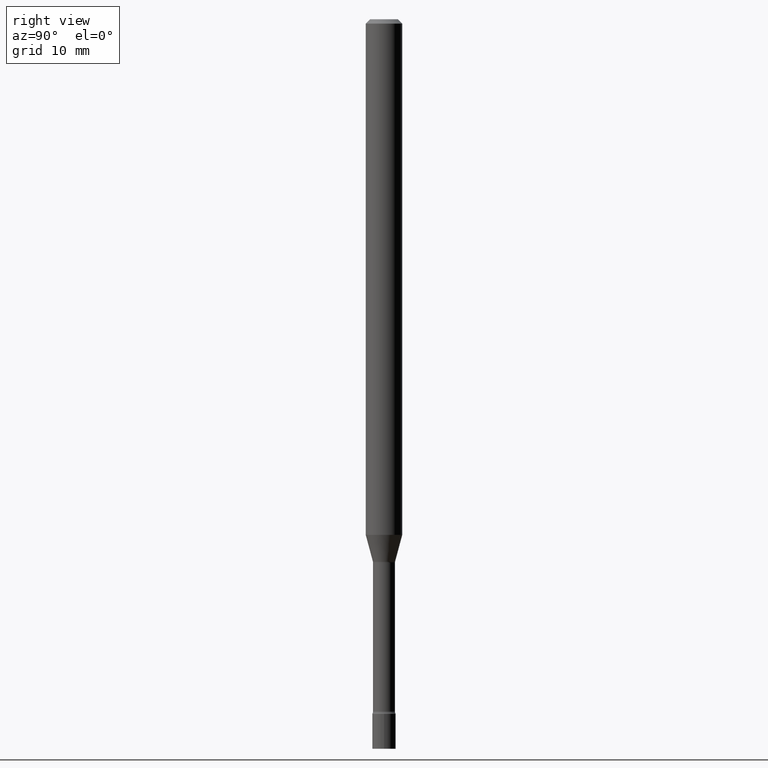
[diagram: clean part render]
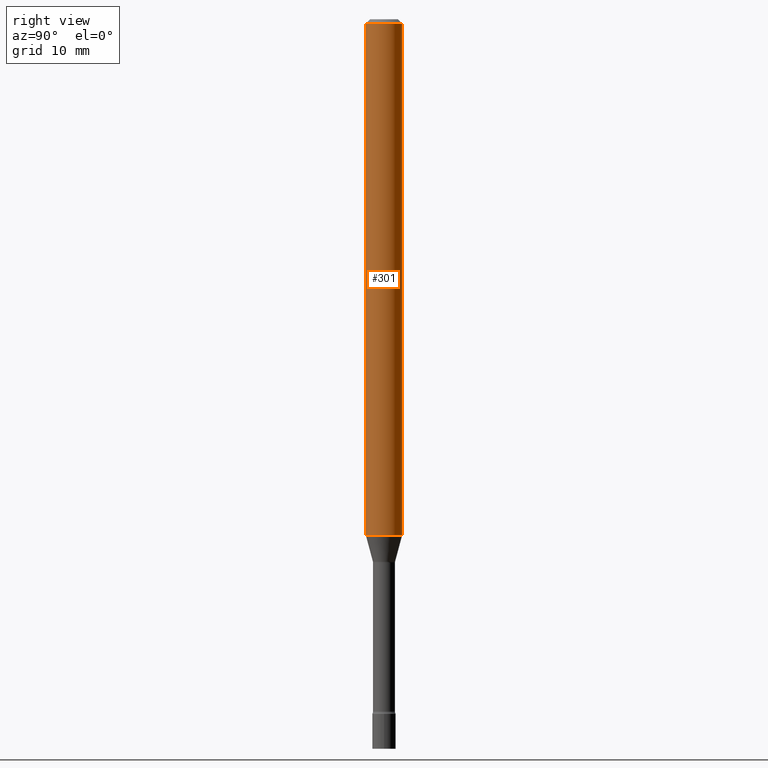
[diagram: same view with one face highlighted and labeled with its STEP entity id]
A machine part, right view. The second image highlights one B-rep face of the part: STEP entity #301.
In plain terms, the highlighted cylindrical surface (edge-blend (fillet) strip) has radius 1.5875 mm, axis along (-0, 0, 1).
Its self-contained STEP definition (entity closure, byte-faithful):
#1 = LINE ( 'NONE', #372, #424 ) ;
#11 = VERTEX_POINT ( 'NONE', #240 ) ;
#54 = DIRECTION ( 'NONE',  ( -6.982962677686265922E-15, -1.000000000000000000, 3.483106191921935554E-15 ) ) ;
#86 = AXIS2_PLACEMENT_3D ( 'NONE', #139, #295, #219 ) ;
#88 = DIRECTION ( 'NONE',  ( -2.445487859236075809E-29, 3.491454053789768278E-15, 1.000000000000000000 ) ) ;
#91 = CIRCLE ( 'NONE', #205, 0.06250000000000000000 ) ;
#122 = VERTEX_POINT ( 'NONE', #451 ) ;
#123 = CYLINDRICAL_SURFACE ( 'NONE', #249, 0.06250000000000000000 ) ;
#139 = CARTESIAN_POINT ( 'NONE',  ( 4.321352963174050504E-29, -6.169650470415179361E-15, -1.767071934891535134 ) ) ;
#159 = VERTEX_POINT ( 'NONE', #376 ) ;
#166 = DIRECTION ( 'NONE',  ( -2.445487859236075809E-29, 3.491454053789768278E-15, 1.000000000000000000 ) ) ;
#170 = EDGE_CURVE ( 'NONE', #342, #11, #91, .T. ) ;
#176 = CARTESIAN_POINT ( 'NONE',  ( 4.440892098500625669E-16, 0.06250000000000000000, -2.182158783618605173E-16 ) ) ;
#179 = CARTESIAN_POINT ( 'NONE',  ( 3.668231788854121000E-31, -5.237181080684662746E-17, -0.01500000000000003067 ) ) ;
#200 = EDGE_CURVE ( 'NONE', #159, #11, #339, .T. ) ;
#205 = AXIS2_PLACEMENT_3D ( 'NONE', #179, #378, #54 ) ;
#219 = DIRECTION ( 'NONE',  ( -6.982962677686265922E-15, -1.000000000000000000, 4.370956789862821150E-15 ) ) ;
#224 = VECTOR ( 'NONE', #341, 39.37007874015748143 ) ;
#240 = CARTESIAN_POINT ( 'NONE',  ( 4.440892098501060035E-16, 0.06249999999999995143, -0.01500000000000024751 ) ) ;
#249 = AXIS2_PLACEMENT_3D ( 'NONE', #370, #166, #330 ) ;
#282 = CARTESIAN_POINT ( 'NONE',  ( -4.364351673553912750E-16, -0.06250000000000005551, -0.01499999999999981209 ) ) ;
#294 = ORIENTED_EDGE ( 'NONE', *, *, #200, .T. ) ;
#295 = DIRECTION ( 'NONE',  ( -2.445487859236075809E-29, 3.491454053789768278E-15, 1.000000000000000000 ) ) ;
#301 = ADVANCED_FACE ( 'NONE', ( #408 ), #123, .T. ) ;
#327 = CIRCLE ( 'NONE', #86, 0.06250000000000000000 ) ;
#330 = DIRECTION ( 'NONE',  ( -6.982962677686265922E-15, -1.000000000000000000, 3.491454053789768278E-15 ) ) ;
#339 = LINE ( 'NONE', #176, #224 ) ;
#341 = DIRECTION ( 'NONE',  ( -2.445487859236075809E-29, 3.491454053789768278E-15, 1.000000000000000000 ) ) ;
#342 = VERTEX_POINT ( 'NONE', #282 ) ;
#350 = ORIENTED_EDGE ( 'NONE', *, *, #397, .F. ) ;
#370 = CARTESIAN_POINT ( 'NONE',  ( 0.000000000000000000, 0.000000000000000000, 0.000000000000000000 ) ) ;
#372 = CARTESIAN_POINT ( 'NONE',  ( -4.364351673553916201E-16, -0.06250000000000000000, 2.182158783618605173E-16 ) ) ;
#376 = CARTESIAN_POINT ( 'NONE',  ( 4.440892098501054119E-16, 0.06249999999999378969, -1.767071934891535356 ) ) ;
#378 = DIRECTION ( 'NONE',  ( -2.445487859236075809E-29, 3.491454053789768278E-15, 1.000000000000000000 ) ) ;
#397 = EDGE_CURVE ( 'NONE', #122, #342, #1, .T. ) ;
#408 = FACE_OUTER_BOUND ( 'NONE', #474, .T. ) ;
#424 = VECTOR ( 'NONE', #88, 39.37007874015748143 ) ;
#428 = ORIENTED_EDGE ( 'NONE', *, *, #488, .T. ) ;
#451 = CARTESIAN_POINT ( 'NONE',  ( -4.364351673553487258E-16, -0.06250000000000620337, -1.767071934891534912 ) ) ;
#474 = EDGE_LOOP ( 'NONE', ( #428, #294, #494, #350 ) ) ;
#488 = EDGE_CURVE ( 'NONE', #122, #159, #327, .T. ) ;
#494 = ORIENTED_EDGE ( 'NONE', *, *, #170, .F. ) ;